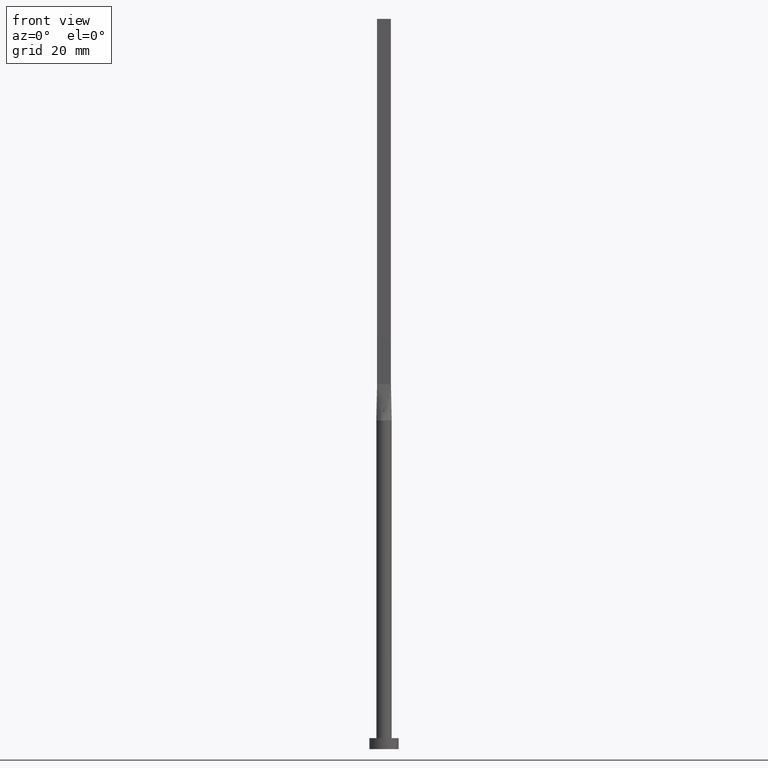
[diagram: clean part render]
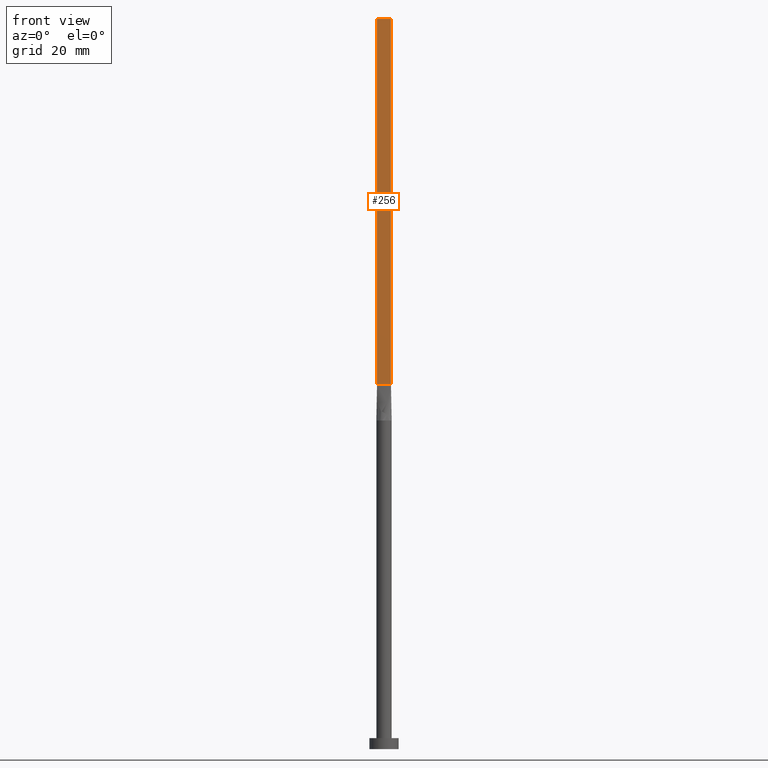
[diagram: same view with one face highlighted and labeled with its STEP entity id]
A machine part, front view. The second image highlights one B-rep face of the part: STEP entity #256.
In plain terms, the highlighted planar face has unit normal (0, 1, -0).
Its self-contained STEP definition (entity closure, byte-faithful):
#2 = FACE_OUTER_BOUND ( 'NONE', #52, .T. ) ;
#16 = VERTEX_POINT ( 'NONE', #424 ) ;
#23 = LINE ( 'NONE', #517, #431 ) ;
#27 = VECTOR ( 'NONE', #519, 1000.000000000000000 ) ;
#35 = ORIENTED_EDGE ( 'NONE', *, *, #514, .T. ) ;
#52 = EDGE_LOOP ( 'NONE', ( #217, #136, #203, #35 ) ) ;
#54 = CARTESIAN_POINT ( 'NONE',  ( 1.899999999999999023, -0.4999999999999997780, 200.0000000000000000 ) ) ;
#130 = CARTESIAN_POINT ( 'NONE',  ( 1.899999999999999023, -0.4999999999999997780, 99.99999999999998579 ) ) ;
#134 = CARTESIAN_POINT ( 'NONE',  ( -1.899999999999999911, -0.4999999999999995559, 200.0000000000000000 ) ) ;
#136 = ORIENTED_EDGE ( 'NONE', *, *, #491, .F. ) ;
#137 = DIRECTION ( 'NONE',  ( -1.000000000000000000, 5.706327223607920020E-17, 0.000000000000000000 ) ) ;
#144 = LINE ( 'NONE', #329, #27 ) ;
#151 = DIRECTION ( 'NONE',  ( -0.000000000000000000, -0.000000000000000000, -1.000000000000000000 ) ) ;
#164 = VECTOR ( 'NONE', #151, 1000.000000000000000 ) ;
#172 = VECTOR ( 'NONE', #405, 1000.000000000000000 ) ;
#203 = ORIENTED_EDGE ( 'NONE', *, *, #303, .F. ) ;
#211 = VERTEX_POINT ( 'NONE', #351 ) ;
#217 = ORIENTED_EDGE ( 'NONE', *, *, #466, .T. ) ;
#238 = AXIS2_PLACEMENT_3D ( 'NONE', #134, #399, #137 ) ;
#256 = ADVANCED_FACE ( 'NONE', ( #2 ), #540, .F. ) ;
#260 = VERTEX_POINT ( 'NONE', #130 ) ;
#291 = DIRECTION ( 'NONE',  ( -0.000000000000000000, -0.000000000000000000, -1.000000000000000000 ) ) ;
#294 = CARTESIAN_POINT ( 'NONE',  ( 1.899999999999999023, -0.4999999999999997780, 200.0000000000000000 ) ) ;
#303 = EDGE_CURVE ( 'NONE', #211, #417, #502, .T. ) ;
#321 = CARTESIAN_POINT ( 'NONE',  ( -1.899999999999999911, -0.4999999999999995559, 200.0000000000000000 ) ) ;
#329 = CARTESIAN_POINT ( 'NONE',  ( -1.899999999999999911, -0.4999999999999995559, 99.99999999999998579 ) ) ;
#351 = CARTESIAN_POINT ( 'NONE',  ( -1.899999999999999911, -0.4999999999999995559, 200.0000000000000000 ) ) ;
#399 = DIRECTION ( 'NONE',  ( 5.706327223607920020E-17, 1.000000000000000000, -0.000000000000000000 ) ) ;
#405 = DIRECTION ( 'NONE',  ( 1.000000000000000000, -5.706327223607920020E-17, 0.000000000000000000 ) ) ;
#417 = VERTEX_POINT ( 'NONE', #54 ) ;
#424 = CARTESIAN_POINT ( 'NONE',  ( -1.899999999999999911, -0.4999999999999995559, 99.99999999999998579 ) ) ;
#431 = VECTOR ( 'NONE', #291, 1000.000000000000000 ) ;
#466 = EDGE_CURVE ( 'NONE', #16, #260, #144, .T. ) ;
#491 = EDGE_CURVE ( 'NONE', #417, #260, #559, .T. ) ;
#502 = LINE ( 'NONE', #321, #172 ) ;
#514 = EDGE_CURVE ( 'NONE', #211, #16, #23, .T. ) ;
#517 = CARTESIAN_POINT ( 'NONE',  ( -1.899999999999999911, -0.4999999999999995559, 200.0000000000000000 ) ) ;
#519 = DIRECTION ( 'NONE',  ( 1.000000000000000000, -5.706327223607918787E-17, 0.000000000000000000 ) ) ;
#540 = PLANE ( 'NONE',  #238 ) ;
#559 = LINE ( 'NONE', #294, #164 ) ;